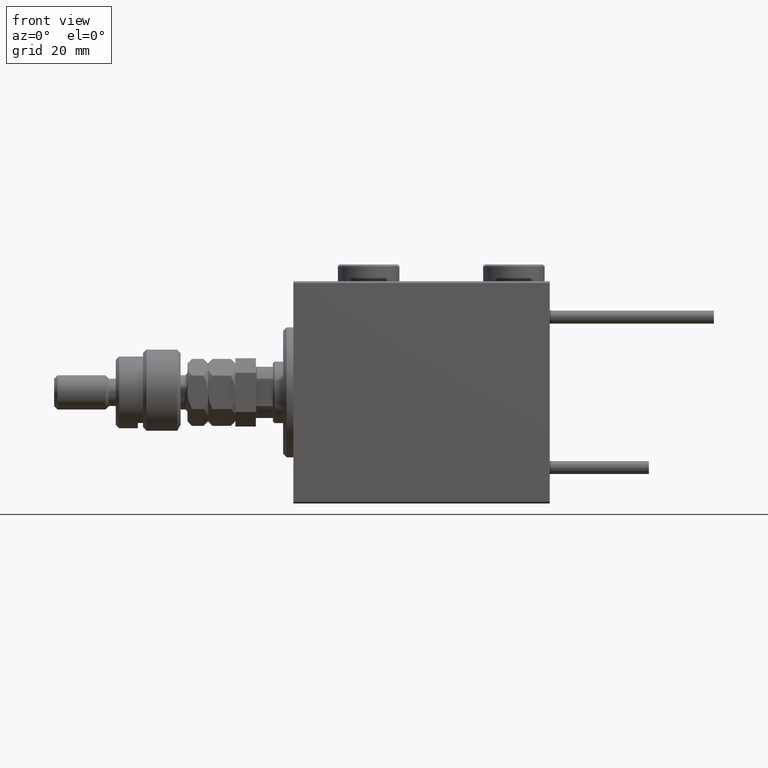
[diagram: clean part render]
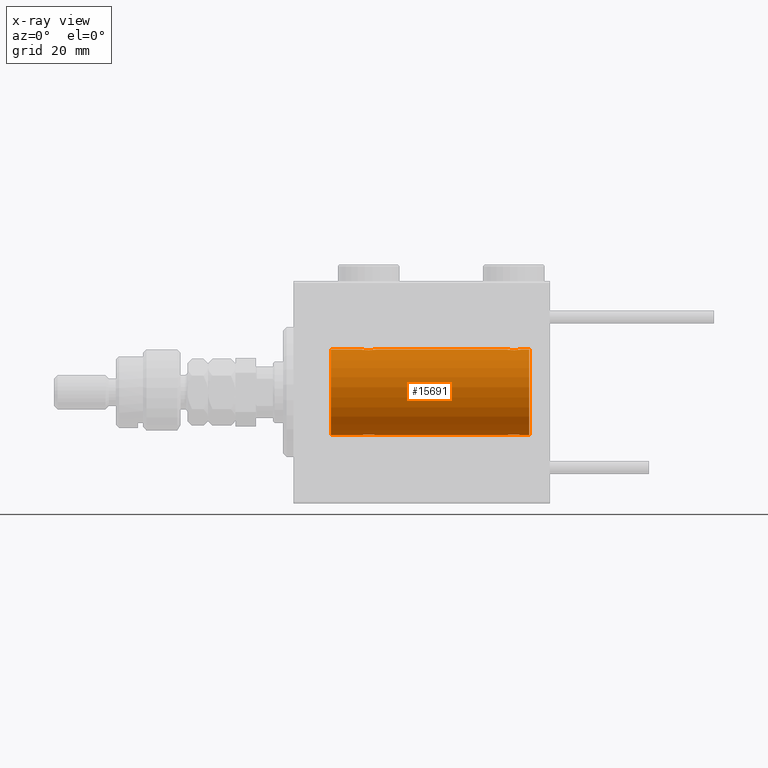
[diagram: x-ray — body ghosted, one internal face saturated and labeled with its STEP entity id]
A machine part, front view, then the same camera in x-ray: the body is ghosted and one INTERNAL B-rep face — a face not visible from any outside direction — is saturated and labeled: STEP entity #15691.
In plain terms, the highlighted cylindrical surface (partial cylindrical patch) has radius 12.5 mm, axis along (-1, -0, -0).
Its self-contained STEP definition (entity closure, byte-faithful):
#184 = CARTESIAN_POINT ( 'NONE',  ( 64.63089967323422513, -2.000082296475560906, 12.33894933996983490 ) ) ;
#194 = EDGE_CURVE ( 'NONE', #35673, #12257, #24002, .T. ) ;
#750 = EDGE_CURVE ( 'NONE', #19192, #41529, #24224, .T. ) ;
#1234 = DIRECTION ( 'NONE',  ( 0.000000000000000000, 0.000000000000000000, 1.000000000000000000 ) ) ;
#1285 = CARTESIAN_POINT ( 'NONE',  ( 65.82116712851446039, -1.507135374967687458, 12.40915432986586886 ) ) ;
#1340 = LINE ( 'NONE', #15029, #18014 ) ;
#1391 = CARTESIAN_POINT ( 'NONE',  ( 21.35356103036408371, -1.897190184049189599, 12.35529285772521391 ) ) ;
#1514 = DIRECTION ( 'NONE',  ( -1.000000000000000000, 0.000000000000000000, 0.000000000000000000 ) ) ;
#1676 = CARTESIAN_POINT ( 'NONE',  ( 21.11125274202960256, -1.796480516834690233, 12.37033750336835958 ) ) ;
#2309 = CARTESIAN_POINT ( 'NONE',  ( 69.00000000000000000, 0.000000000000000000, 12.50000000000000000 ) ) ;
#2490 = CARTESIAN_POINT ( 'NONE',  ( 24.00000000000000000, -0.2646816682749787430, 12.50000000000000178 ) ) ;
#2522 = EDGE_CURVE ( 'NONE', #43507, #40029, #21156, .T. ) ;
#2901 = CARTESIAN_POINT ( 'NONE',  ( 24.00000000000000000, -4.527848004210791175E-16, 12.50000000000000000 ) ) ;
#2919 = CARTESIAN_POINT ( 'NONE',  ( 64.76391373102437399, -1.986793270638192999, -12.34112317291865146 ) ) ;
#3280 = CARTESIAN_POINT ( 'NONE',  ( 65.01693726697625664, -1.936441098420705220, 12.34912369794528786 ) ) ;
#3629 = CARTESIAN_POINT ( 'NONE',  ( 23.58981090228289546, -1.220538259806347225, -12.44075068685997287 ) ) ;
#3749 = CARTESIAN_POINT ( 'NONE',  ( 64.23906502714395117, -1.987194304939075673, -12.34105826212746138 ) ) ;
#4100 = CARTESIAN_POINT ( 'NONE',  ( 63.61125274202959901, -1.796480516834681573, 12.37033750336835958 ) ) ;
#4491 = CARTESIAN_POINT ( 'NONE',  ( 69.00000000000000000, 0.000000000000000000, 12.50000000000000000 ) ) ;
#4748 = VERTEX_POINT ( 'NONE', #35834 ) ;
#4879 = CYLINDRICAL_SURFACE ( 'NONE', #36021, 12.50000000000000000 ) ;
#5193 = CARTESIAN_POINT ( 'NONE',  ( 66.44665679898379551, -0.5275951738695600080, 12.49118442338578561 ) ) ;
#5574 = CARTESIAN_POINT ( 'NONE',  ( 22.64425278797729391, -1.897913903092048438, 12.35518060345725111 ) ) ;
#6692 = CARTESIAN_POINT ( 'NONE',  ( 19.99999999999999289, -0.2612140938986765581, 12.50000000000000000 ) ) ;
#6989 = CARTESIAN_POINT ( 'NONE',  ( 23.94744340572329833, -0.5247436444070328054, -12.49130933415156619 ) ) ;
#7272 = CARTESIAN_POINT ( 'NONE',  ( 23.79785606468258052, -0.8858253204748003373, -12.46915613403960954 ) ) ;
#7399 = CARTESIAN_POINT ( 'NONE',  ( 63.85574721202269188, -1.897913903092045329, -12.35518060345724933 ) ) ;
#7417 = DIRECTION ( 'NONE',  ( 0.000000000000000000, 0.000000000000000000, 1.000000000000000000 ) ) ;
#7952 = CARTESIAN_POINT ( 'NONE',  ( 65.82299943107733498, -1.505544071529929750, -12.40934942683853848 ) ) ;
#8040 = CARTESIAN_POINT ( 'NONE',  ( 62.91018909771711520, -1.220538259806350778, 12.44075068685996754 ) ) ;
#8855 = CARTESIAN_POINT ( 'NONE',  ( 63.27972850102581504, -1.589951752150278397, 12.39868561261688740 ) ) ;
#8966 = EDGE_CURVE ( 'NONE', #39497, #42750, #50073, .T. ) ;
#9396 = CARTESIAN_POINT ( 'NONE',  ( 65.71854119541936257, -1.591305132013873358, 12.39851226212235957 ) ) ;
#9487 = ORIENTED_EDGE ( 'NONE', *, *, #10354, .F. ) ;
#9787 = CARTESIAN_POINT ( 'NONE',  ( 21.86659749548704212, -1.999916920503820306, 12.33897614545467647 ) ) ;
#10012 = VECTOR ( 'NONE', #51162, 1000.000000000000000 ) ;
#10354 = EDGE_CURVE ( 'NONE', #43507, #42750, #50983, .T. ) ;
#10618 = CARTESIAN_POINT ( 'NONE',  ( 19.99999999999999645, -7.265724481447607133E-23, 12.50000000000000000 ) ) ;
#11600 = CARTESIAN_POINT ( 'NONE',  ( 65.01961472357872651, -1.935716533151637941, -12.34923763528285079 ) ) ;
#12024 = CARTESIAN_POINT ( 'NONE',  ( 24.00000000000000711, -0.2612140938986747818, -12.50000000000000533 ) ) ;
#12257 = VERTEX_POINT ( 'NONE', #17156 ) ;
#12383 = CARTESIAN_POINT ( 'NONE',  ( 62.50000000000000000, -6.782673595553849353E-15, -12.50000000000000000 ) ) ;
#12520 = VECTOR ( 'NONE', #51527, 1000.000000000000000 ) ;
#13040 = CARTESIAN_POINT ( 'NONE',  ( 64.36659749548704212, -1.999916920503812534, 12.33897614545467647 ) ) ;
#13215 = EDGE_CURVE ( 'NONE', #12257, #47280, #1340, .T. ) ;
#14805 = CARTESIAN_POINT ( 'NONE',  ( 21.73608626897565799, -1.986793270638199438, 12.34112317291865502 ) ) ;
#15029 = CARTESIAN_POINT ( 'NONE',  ( 69.00000000000000000, 1.530808498934191521E-15, -12.50000000000000000 ) ) ;
#15081 = CARTESIAN_POINT ( 'NONE',  ( 20.77972850102578661, -1.589951752150277287, 12.39868561261688917 ) ) ;
#15235 = CARTESIAN_POINT ( 'NONE',  ( 63.49900207901494298, -1.736403706023268878, -12.37902502246768321 ) ) ;
#15502 = CARTESIAN_POINT ( 'NONE',  ( 62.50000000000000000, -6.782673595553849353E-15, -12.50000000000000000 ) ) ;
#15691 = ADVANCED_FACE ( 'NONE', ( #43801 ), #4879, .F. ) ;
#15768 = EDGE_CURVE ( 'NONE', #19192, #31799, #52122, .T. ) ;
#15931 = CARTESIAN_POINT ( 'NONE',  ( 24.00000000000000000, 1.530808426277417854E-15, -12.50000000000000000 ) ) ;
#16061 = CARTESIAN_POINT ( 'NONE',  ( 64.36910032676578908, -2.000082296475564458, -12.33894933996983667 ) ) ;
#16144 = CARTESIAN_POINT ( 'NONE',  ( 65.50099792098508544, -1.736403706023266658, 12.37902502246767789 ) ) ;
#16336 = CARTESIAN_POINT ( 'NONE',  ( 66.50000000000000000, 1.530808426270318106E-15, -12.50000000000000000 ) ) ;
#17156 = CARTESIAN_POINT ( 'NONE',  ( 19.99999999999999645, -3.213890523917628161E-15, -12.50000000000000000 ) ) ;
#17238 = CARTESIAN_POINT ( 'NONE',  ( 64.76093497285604883, -1.987194304939074341, 12.34105826212746138 ) ) ;
#17460 = DIRECTION ( 'NONE',  ( 0.000000000000000000, 0.000000000000000000, 1.000000000000000000 ) ) ;
#17508 = CARTESIAN_POINT ( 'NONE',  ( 66.09744774691023395, -1.231226695485355904, 12.44059298055988450 ) ) ;
#18014 = VECTOR ( 'NONE', #52862, 1000.000000000000000 ) ;
#18041 = EDGE_CURVE ( 'NONE', #31799, #40029, #27034, .T. ) ;
#18453 = CARTESIAN_POINT ( 'NONE',  ( 21.48038527642126283, -1.935716533151644825, 12.34923763528284724 ) ) ;
#19006 = CARTESIAN_POINT ( 'NONE',  ( 22.26093497285607370, -1.987194304939079448, 12.34105826212746138 ) ) ;
#19192 = VERTEX_POINT ( 'NONE', #29512 ) ;
#19277 = CARTESIAN_POINT ( 'NONE',  ( 23.94665679898380617, -0.5275951738695671134, 12.49118442338578561 ) ) ;
#19711 = CARTESIAN_POINT ( 'NONE',  ( 62.55334320101622581, -0.5275951738695753290, -12.49118442338578916 ) ) ;
#19850 = CARTESIAN_POINT ( 'NONE',  ( 66.50000000000000000, 3.163483401492493339E-15, 12.50000000000000000 ) ) ;
#19852 = CARTESIAN_POINT ( 'NONE',  ( 22.64643896963591985, -1.897190184049187378, -12.35529285772521924 ) ) ;
#20131 = CARTESIAN_POINT ( 'NONE',  ( 21.35574721202270254, -1.897913903092047327, -12.35518060345725289 ) ) ;
#20258 = CARTESIAN_POINT ( 'NONE',  ( 65.72027149897421339, -1.589951752150270181, -12.39868561261689095 ) ) ;
#20347 = CARTESIAN_POINT ( 'NONE',  ( 65.14425278797727970, -1.897913903092038890, 12.35518060345724933 ) ) ;
#20556 = CARTESIAN_POINT ( 'NONE',  ( 69.00000000000000000, 1.530808498934191521E-15, -12.50000000000000000 ) ) ;
#20915 = EDGE_CURVE ( 'NONE', #41529, #51013, #45001, .T. ) ;
#20966 = CARTESIAN_POINT ( 'NONE',  ( 21.86910032676576421, -2.000082296475566679, -12.33894933996983490 ) ) ;
#21156 = B_SPLINE_CURVE_WITH_KNOTS ( 'NONE', 3,
 ( #30148, #46398, #42190, #55080, #29612, #8040, #42461, #25131, #8855, #21455, #4100, #47218, #21172, #55359, #13040, #184, #17238, #3280, #20347, #54537, #16144, #9396, #1285, #17508, #52241, #5193, #51968, #48328 ),
 .UNSPECIFIED., .F., .F.,
 ( 4, 2, 2, 2, 2, 2, 2, 2, 2, 2, 2, 2, 2, 4 ),
 ( 0.006262980370572151546, 0.007045658964677331722, 0.007436998261729929616, 0.007828337558782528377, 0.008219676855835125404, 0.008611016152887724165, 0.009002355449940321191, 0.009393694746992919953, 0.009785034044045518714, 0.01017637334109811748, 0.01056771263815071624, 0.01095905193520331326, 0.01174173052930854028, 0.01252440912341376555 ),
 .UNSPECIFIED. ) ;
#21172 = CARTESIAN_POINT ( 'NONE',  ( 63.98038527642127349, -1.935716533151639718, 12.34923763528284546 ) ) ;
#21455 = CARTESIAN_POINT ( 'NONE',  ( 63.49654425923309731, -1.734959850168412254, 12.37922718965051061 ) ) ;
#21469 = LINE ( 'NONE', #42751, #10012 ) ;
#21605 = EDGE_LOOP ( 'NONE', ( #36121, #31300, #45373, #50760, #36698, #55101, #51028, #43276, #37256, #9487, #30793, #42817 ) ) ;
#22661 = CARTESIAN_POINT ( 'NONE',  ( 20.20214393531741237, -0.8858253204748024467, 12.46915613403961309 ) ) ;
#23222 = CARTESIAN_POINT ( 'NONE',  ( 24.00000000000000000, -4.527848004210791175E-16, 12.50000000000000000 ) ) ;
#23930 = CARTESIAN_POINT ( 'NONE',  ( 62.90255225308977316, -1.231226695485371669, -12.44059298055988272 ) ) ;
#24002 = B_SPLINE_CURVE_WITH_KNOTS ( 'NONE', 3,
 ( #15931, #12024, #6989, #7272, #41144, #3629, #54603, #54039, #24916, #42253, #46190, #19852, #50938, #37779, #41985, #20966, #33585, #25195, #20131, #33032, #38054, #28293, #33308, #45354, #41699, #50661, #37505, #24076 ),
 .UNSPECIFIED., .F., .F.,
 ( 4, 2, 2, 2, 2, 2, 2, 2, 2, 2, 2, 2, 2, 4 ),
 ( 0.006262980370572176700, 0.007045658964677373355, 0.007436998261729973851, 0.007828337558782575215, 0.008219676855835175711, 0.008611016152887776207, 0.009002355449940376703, 0.009393694746992977199, 0.009785034044045577695, 0.01017637334109817646, 0.01056771263815077869, 0.01095905193520337745, 0.01174173052930858711, 0.01252440912341379504 ),
 .UNSPECIFIED. ) ;
#24076 = CARTESIAN_POINT ( 'NONE',  ( 19.99999999999999645, -3.213890523917628161E-15, -12.50000000000000000 ) ) ;
#24208 = CARTESIAN_POINT ( 'NONE',  ( 66.23563078019577688, -1.002396200863551412, -12.46022444231050841 ) ) ;
#24224 = LINE ( 'NONE', #20556, #24880 ) ;
#24880 = VECTOR ( 'NONE', #45504, 1000.000000000000000 ) ;
#24916 = CARTESIAN_POINT ( 'NONE',  ( 23.22027149897420628, -1.589951752150275732, -12.39868561261689273 ) ) ;
#25045 = CARTESIAN_POINT ( 'NONE',  ( 66.44744340572329122, -0.5247436444070331385, -12.49130933415156619 ) ) ;
#25131 = CARTESIAN_POINT ( 'NONE',  ( 63.17700056892268634, -1.505544071529930639, 12.40934942683854025 ) ) ;
#25195 = CARTESIAN_POINT ( 'NONE',  ( 21.48306273302371494, -1.936441098420706997, -12.34912369794528431 ) ) ;
#25413 = AXIS2_PLACEMENT_3D ( 'NONE', #37371, #28999, #7417 ) ;
#26895 = CARTESIAN_POINT ( 'NONE',  ( 23.32116712851443907, -1.507135374967700558, 12.40915432986587064 ) ) ;
#27034 = LINE ( 'NONE', #30937, #54011 ) ;
#27181 = CIRCLE ( 'NONE', #25413, 12.50000000000000000 ) ;
#27449 = CARTESIAN_POINT ( 'NONE',  ( 23.00099792098508189, -1.736403706023272431, 12.37902502246767966 ) ) ;
#27990 = CARTESIAN_POINT ( 'NONE',  ( 20.99654425923307954, -1.734959850168413587, 12.37922718965051061 ) ) ;
#28293 = CARTESIAN_POINT ( 'NONE',  ( 20.78145880458060901, -1.591305132013878021, -12.39851226212236313 ) ) ;
#28999 = DIRECTION ( 'NONE',  ( -1.000000000000000000, 0.000000000000000000, 0.000000000000000000 ) ) ;
#29512 = CARTESIAN_POINT ( 'NONE',  ( 69.00000000000000000, 1.530808498934191521E-15, -12.50000000000000000 ) ) ;
#29612 = CARTESIAN_POINT ( 'NONE',  ( 62.76436921980424444, -1.002396200863564291, 12.46022444231050663 ) ) ;
#30095 = CARTESIAN_POINT ( 'NONE',  ( 66.50000000000000000, 1.530808426270318106E-15, -12.50000000000000000 ) ) ;
#30148 = CARTESIAN_POINT ( 'NONE',  ( 62.50000000000000000, -7.266434456262306043E-23, 12.50000000000000000 ) ) ;
#30793 = ORIENTED_EDGE ( 'NONE', *, *, #2522, .T. ) ;
#30937 = CARTESIAN_POINT ( 'NONE',  ( 69.00000000000000000, 0.000000000000000000, 12.50000000000000000 ) ) ;
#31202 = DIRECTION ( 'NONE',  ( -1.000000000000000000, -0.000000000000000000, -0.000000000000000000 ) ) ;
#31300 = ORIENTED_EDGE ( 'NONE', *, *, #750, .T. ) ;
#31640 = CARTESIAN_POINT ( 'NONE',  ( 22.51693726697628151, -1.936441098420708773, 12.34912369794528608 ) ) ;
#31799 = VERTEX_POINT ( 'NONE', #2309 ) ;
#31913 = CARTESIAN_POINT ( 'NONE',  ( 20.05255659427670167, -0.5247436444070346928, 12.49130933415156619 ) ) ;
#32880 = CARTESIAN_POINT ( 'NONE',  ( 64.63340250451298630, -1.999916920503812978, -12.33897614545467647 ) ) ;
#33032 = CARTESIAN_POINT ( 'NONE',  ( 21.11383846120566332, -1.797736511708062368, -12.37015393445320122 ) ) ;
#33308 = CARTESIAN_POINT ( 'NONE',  ( 20.67883287148555382, -1.507135374967699670, -12.40915432986587064 ) ) ;
#33585 = CARTESIAN_POINT ( 'NONE',  ( 21.73906502714393341, -1.987194304939077671, -12.34105826212746138 ) ) ;
#34338 = LINE ( 'NONE', #39360, #40574 ) ;
#35548 = CARTESIAN_POINT ( 'NONE',  ( 22.13089967323422869, -2.000082296475568011, 12.33894933996983134 ) ) ;
#35673 = VERTEX_POINT ( 'NONE', #54875 ) ;
#35834 = CARTESIAN_POINT ( 'NONE',  ( 10.99999999999999645, 0.000000000000000000, 12.50000000000000000 ) ) ;
#36021 = AXIS2_PLACEMENT_3D ( 'NONE', #39859, #31202, #1234 ) ;
#36107 = CARTESIAN_POINT ( 'NONE',  ( 22.88616153879432602, -1.797736511708064144, 12.37015393445320299 ) ) ;
#36121 = ORIENTED_EDGE ( 'NONE', *, *, #15768, .F. ) ;
#36318 = CARTESIAN_POINT ( 'NONE',  ( 62.50000000000000000, -7.266434456262306043E-23, 12.50000000000000000 ) ) ;
#36646 = CARTESIAN_POINT ( 'NONE',  ( 20.26436921980423023, -1.002396200863561404, 12.46022444231050841 ) ) ;
#36698 = ORIENTED_EDGE ( 'NONE', *, *, #194, .T. ) ;
#37256 = ORIENTED_EDGE ( 'NONE', *, *, #8966, .T. ) ;
#37350 = CARTESIAN_POINT ( 'NONE',  ( 65.50345574076692401, -1.734959850168405593, -12.37922718965050528 ) ) ;
#37371 = CARTESIAN_POINT ( 'NONE',  ( 10.99999999999999645, 0.000000000000000000, 0.000000000000000000 ) ) ;
#37505 = CARTESIAN_POINT ( 'NONE',  ( 20.00000000000000000, -0.2646816682749822958, -12.50000000000000000 ) ) ;
#37779 = CARTESIAN_POINT ( 'NONE',  ( 22.26391373102435622, -1.986793270638196551, -12.34112317291864791 ) ) ;
#37905 = CARTESIAN_POINT ( 'NONE',  ( 63.98306273302372915, -1.936441098420705886, -12.34912369794528786 ) ) ;
#38054 = CARTESIAN_POINT ( 'NONE',  ( 20.99900207901491811, -1.736403706023270654, -12.37902502246767966 ) ) ;
#39360 = CARTESIAN_POINT ( 'NONE',  ( 69.00000000000000000, 0.000000000000000000, 12.50000000000000000 ) ) ;
#39497 = VERTEX_POINT ( 'NONE', #53405 ) ;
#39660 = CARTESIAN_POINT ( 'NONE',  ( 10.99999999999999645, 1.530808498934191521E-15, -12.50000000000000000 ) ) ;
#39859 = CARTESIAN_POINT ( 'NONE',  ( 69.00000000000000000, 0.000000000000000000, 0.000000000000000000 ) ) ;
#40029 = VERTEX_POINT ( 'NONE', #19850 ) ;
#40564 = CARTESIAN_POINT ( 'NONE',  ( 20.41018909771710454, -1.220538259806349446, 12.44075068685996932 ) ) ;
#40574 = VECTOR ( 'NONE', #51422, 1000.000000000000000 ) ;
#40833 = CARTESIAN_POINT ( 'NONE',  ( 20.67700056892266502, -1.505544071529935968, 12.40934942683853670 ) ) ;
#40994 = CARTESIAN_POINT ( 'NONE',  ( 62.75337863379105841, -1.008535157355846978, -12.46157701909767290 ) ) ;
#41144 = CARTESIAN_POINT ( 'NONE',  ( 23.73563078019576977, -1.002396200863559184, -12.46022444231050663 ) ) ;
#41274 = CARTESIAN_POINT ( 'NONE',  ( 66.08981090228292032, -1.220538259806340786, -12.44075068685997287 ) ) ;
#41529 = VERTEX_POINT ( 'NONE', #30095 ) ;
#41550 = CARTESIAN_POINT ( 'NONE',  ( 63.28145880458059480, -1.591305132013875134, -12.39851226212236135 ) ) ;
#41699 = CARTESIAN_POINT ( 'NONE',  ( 20.25337863379106551, -1.008535157355840761, -12.46157701909767646 ) ) ;
#41831 = CARTESIAN_POINT ( 'NONE',  ( 63.61383846120567398, -1.797736511708062368, -12.37015393445320832 ) ) ;
#41985 = CARTESIAN_POINT ( 'NONE',  ( 22.13340250451295077, -1.999916920503817197, -12.33897614545467469 ) ) ;
#42112 = CARTESIAN_POINT ( 'NONE',  ( 66.00722151467994081, -1.321088093821072729, -12.43033959299025248 ) ) ;
#42190 = CARTESIAN_POINT ( 'NONE',  ( 62.55255659427669457, -0.5247436444070334716, 12.49130933415156441 ) ) ;
#42253 = CARTESIAN_POINT ( 'NONE',  ( 23.00345574076691335, -1.734959850168410256, -12.37922718965050528 ) ) ;
#42461 = CARTESIAN_POINT ( 'NONE',  ( 62.99277848532008761, -1.321088093821075393, 12.43033959299025426 ) ) ;
#42750 = VERTEX_POINT ( 'NONE', #2901 ) ;
#42751 = CARTESIAN_POINT ( 'NONE',  ( 69.00000000000000000, 1.530808498934191521E-15, -12.50000000000000000 ) ) ;
#42817 = ORIENTED_EDGE ( 'NONE', *, *, #18041, .F. ) ;
#43276 = ORIENTED_EDGE ( 'NONE', *, *, #51894, .F. ) ;
#43507 = VERTEX_POINT ( 'NONE', #36318 ) ;
#43801 = FACE_OUTER_BOUND ( 'NONE', #21605, .T. ) ;
#44509 = CARTESIAN_POINT ( 'NONE',  ( 23.74662136620892383, -1.008535157355842538, 12.46157701909767646 ) ) ;
#44789 = CARTESIAN_POINT ( 'NONE',  ( 20.49277848532005919, -1.321088093821079834, 12.43033959299025071 ) ) ;
#45001 = B_SPLINE_CURVE_WITH_KNOTS ( 'NONE', 3,
 ( #16336, #54728, #25045, #46046, #24208, #41274, #42112, #7952, #20258, #37350, #49959, #49683, #11600, #2919, #32880, #16061, #3749, #37905, #7399, #41831, #15235, #41550, #49404, #23930, #40994, #19711, #53889, #15502 ),
 .UNSPECIFIED., .F., .F.,
 ( 4, 2, 2, 2, 2, 2, 2, 2, 2, 2, 2, 2, 2, 4 ),
 ( 0.006262980370572170628, 0.007045658964677357743, 0.007436998261729959973, 0.007828337558782561337, 0.008219676855835163568, 0.008611016152887764064, 0.009002355449940366294, 0.009393694746992968525, 0.009785034044045570756, 0.01017637334109817299, 0.01056771263815077348, 0.01095905193520337745, 0.01174173052930858191, 0.01252440912341378637 ),
 .UNSPECIFIED. ) ;
#45354 = CARTESIAN_POINT ( 'NONE',  ( 20.40255225308977671, -1.231226695485369893, -12.44059298055988627 ) ) ;
#45373 = ORIENTED_EDGE ( 'NONE', *, *, #20915, .T. ) ;
#45464 = EDGE_CURVE ( 'NONE', #51013, #35673, #21469, .T. ) ;
#45504 = DIRECTION ( 'NONE',  ( -1.000000000000000000, -0.000000000000000000, -0.000000000000000000 ) ) ;
#46046 = CARTESIAN_POINT ( 'NONE',  ( 66.29785606468257697, -0.8858253204747996712, -12.46915613403960954 ) ) ;
#46190 = CARTESIAN_POINT ( 'NONE',  ( 22.88874725797039389, -1.796480516834687347, -12.37033750336835247 ) ) ;
#46398 = CARTESIAN_POINT ( 'NONE',  ( 62.49999999999997868, -0.2612140938986745042, 12.50000000000000000 ) ) ;
#47218 = CARTESIAN_POINT ( 'NONE',  ( 63.85356103036409081, -1.897190184049181161, 12.35529285772521213 ) ) ;
#47280 = VERTEX_POINT ( 'NONE', #39660 ) ;
#48328 = CARTESIAN_POINT ( 'NONE',  ( 66.50000000000000000, 3.163483401492493339E-15, 12.50000000000000000 ) ) ;
#48433 = CARTESIAN_POINT ( 'NONE',  ( 23.21854119541938033, -1.591305132013879131, 12.39851226212235957 ) ) ;
#49404 = CARTESIAN_POINT ( 'NONE',  ( 63.17883287148555382, -1.507135374967701447, -12.40915432986587064 ) ) ;
#49683 = CARTESIAN_POINT ( 'NONE',  ( 65.14643896963592340, -1.897190184049178274, -12.35529285772521568 ) ) ;
#49959 = CARTESIAN_POINT ( 'NONE',  ( 65.38874725797043652, -1.796480516834676466, -12.37033750336835425 ) ) ;
#50073 = B_SPLINE_CURVE_WITH_KNOTS ( 'NONE', 3,
 ( #10618, #6692, #31913, #22661, #36646, #40564, #44789, #40833, #15081, #27990, #1676, #1391, #18453, #14805, #9787, #35548, #19006, #31640, #5574, #36107, #27449, #48433, #26895, #53736, #44509, #19277, #2490, #23222 ),
 .UNSPECIFIED., .F., .F.,
 ( 4, 2, 2, 2, 2, 2, 2, 2, 2, 2, 2, 2, 2, 4 ),
 ( 0.006262980370572172363, 0.007045658964677369886, 0.007436998261729971249, 0.007828337558782571745, 0.008219676855835172241, 0.008611016152887774472, 0.009002355449940373233, 0.009393694746992975464, 0.009785034044045575960, 0.01017637334109817646, 0.01056771263815077869, 0.01095905193520337918, 0.01174173052930858538, 0.01252440912341379504 ),
 .UNSPECIFIED. ) ;
#50661 = CARTESIAN_POINT ( 'NONE',  ( 20.05334320101619738, -0.5275951738695662252, -12.49118442338578561 ) ) ;
#50760 = ORIENTED_EDGE ( 'NONE', *, *, #45464, .T. ) ;
#50938 = CARTESIAN_POINT ( 'NONE',  ( 22.51961472357873717, -1.935716533151642826, -12.34923763528285257 ) ) ;
#50983 = LINE ( 'NONE', #4491, #12520 ) ;
#51013 = VERTEX_POINT ( 'NONE', #12383 ) ;
#51028 = ORIENTED_EDGE ( 'NONE', *, *, #52140, .T. ) ;
#51162 = DIRECTION ( 'NONE',  ( -1.000000000000000000, -0.000000000000000000, -0.000000000000000000 ) ) ;
#51422 = DIRECTION ( 'NONE',  ( -1.000000000000000000, -0.000000000000000000, -0.000000000000000000 ) ) ;
#51527 = DIRECTION ( 'NONE',  ( -1.000000000000000000, -0.000000000000000000, -0.000000000000000000 ) ) ;
#51894 = EDGE_CURVE ( 'NONE', #39497, #4748, #34338, .T. ) ;
#51921 = CARTESIAN_POINT ( 'NONE',  ( 69.00000000000000000, 0.000000000000000000, 0.000000000000000000 ) ) ;
#51968 = CARTESIAN_POINT ( 'NONE',  ( 66.50000000000001421, -0.2646816682749792982, 12.50000000000000178 ) ) ;
#52122 = CIRCLE ( 'NONE', #53882, 12.50000000000000000 ) ;
#52140 = EDGE_CURVE ( 'NONE', #47280, #4748, #27181, .T. ) ;
#52241 = CARTESIAN_POINT ( 'NONE',  ( 66.24662136620894159, -1.008535157355832768, 12.46157701909768178 ) ) ;
#52862 = DIRECTION ( 'NONE',  ( -1.000000000000000000, -0.000000000000000000, -0.000000000000000000 ) ) ;
#53052 = DIRECTION ( 'NONE',  ( -1.000000000000000000, -0.000000000000000000, -0.000000000000000000 ) ) ;
#53405 = CARTESIAN_POINT ( 'NONE',  ( 19.99999999999999645, -7.265724481447607133E-23, 12.50000000000000000 ) ) ;
#53736 = CARTESIAN_POINT ( 'NONE',  ( 23.59744774691023039, -1.231226695485369893, 12.44059298055988272 ) ) ;
#53882 = AXIS2_PLACEMENT_3D ( 'NONE', #51921, #1514, #17460 ) ;
#53889 = CARTESIAN_POINT ( 'NONE',  ( 62.50000000000001421, -0.2646816682749852379, -12.50000000000000178 ) ) ;
#54011 = VECTOR ( 'NONE', #53052, 1000.000000000000000 ) ;
#54039 = CARTESIAN_POINT ( 'NONE',  ( 23.32299943107732432, -1.505544071529935080, -12.40934942683853848 ) ) ;
#54537 = CARTESIAN_POINT ( 'NONE',  ( 65.38616153879434023, -1.797736511708053264, 12.37015393445321010 ) ) ;
#54603 = CARTESIAN_POINT ( 'NONE',  ( 23.50722151467992660, -1.321088093821078502, -12.43033959299025248 ) ) ;
#54728 = CARTESIAN_POINT ( 'NONE',  ( 66.49999999999997158, -0.2612140938986723948, -12.49999999999999822 ) ) ;
#54875 = CARTESIAN_POINT ( 'NONE',  ( 24.00000000000000000, 1.530808426277417854E-15, -12.50000000000000000 ) ) ;
#55080 = CARTESIAN_POINT ( 'NONE',  ( 62.70214393531739461, -0.8858253204748003373, 12.46915613403960421 ) ) ;
#55101 = ORIENTED_EDGE ( 'NONE', *, *, #13215, .T. ) ;
#55359 = CARTESIAN_POINT ( 'NONE',  ( 64.23608626897566864, -1.986793270638193443, 12.34112317291865146 ) ) ;